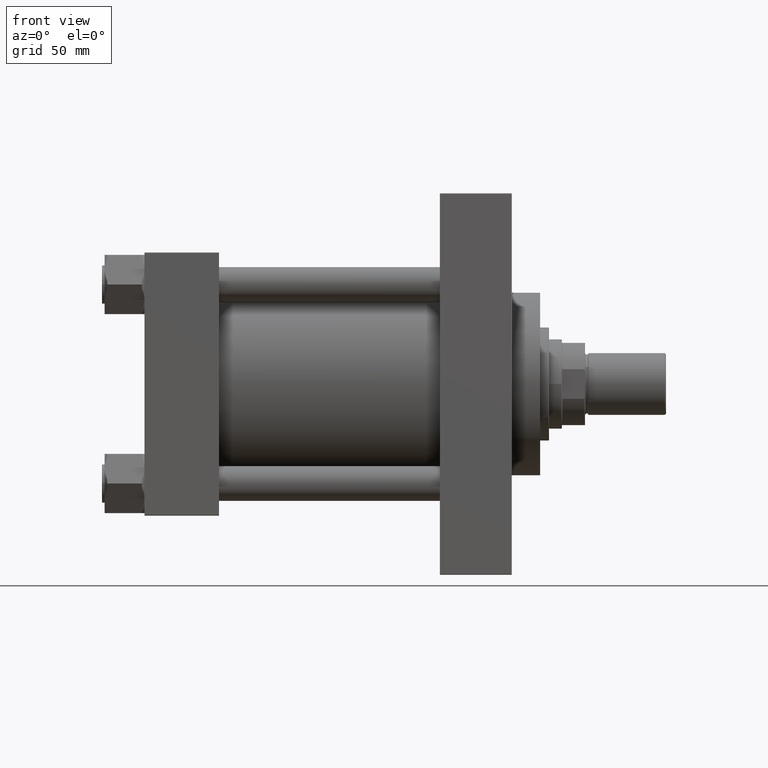
[diagram: clean part render]
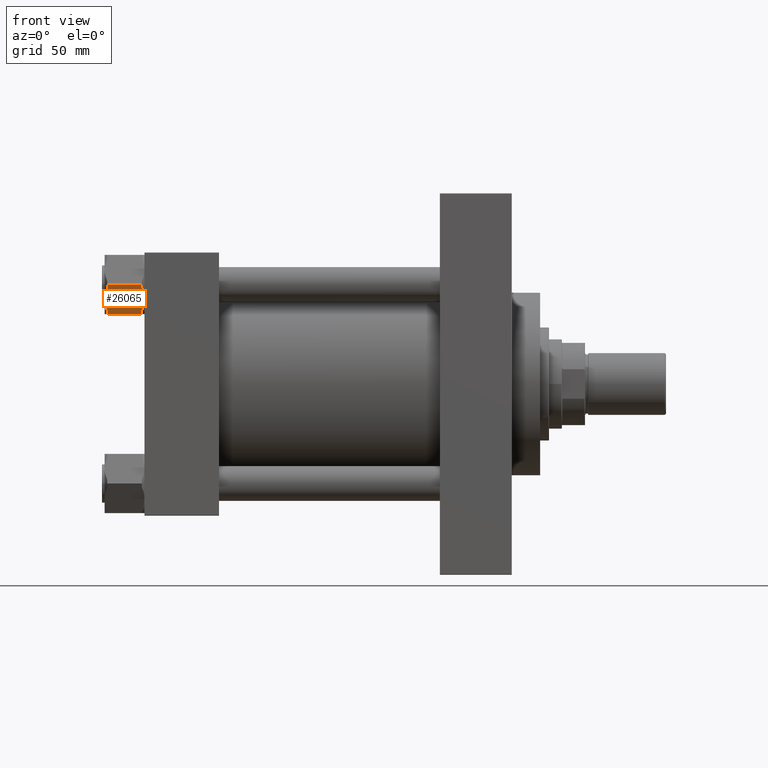
[diagram: same view with one face highlighted and labeled with its STEP entity id]
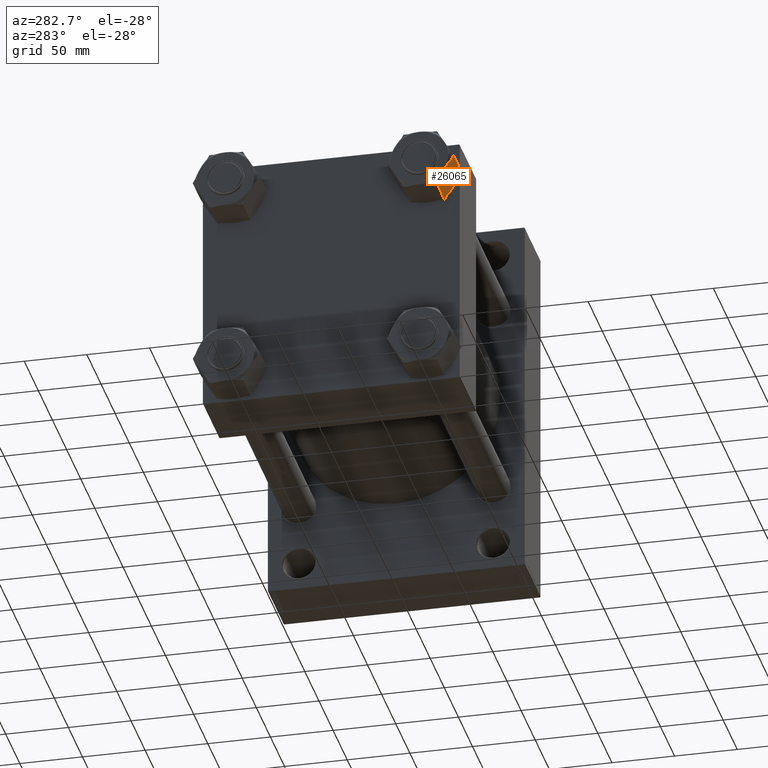
[diagram: same view with one face highlighted and labeled with its STEP entity id]
A machine part, front view. The second image highlights one B-rep face of the part: STEP entity #26065.
A second angle (auxiliary view) of the same face is appended — the face is thin or edge-on in the first view.
In plain terms, the highlighted planar face has unit normal (0, 0.866, 0.5).
Its self-contained STEP definition (entity closure, byte-faithful):
#1501 = VERTEX_POINT ( 'NONE', #16002 ) ;
#2883 = CARTESIAN_POINT ( 'NONE',  ( -26.62000000000000455, 1.322753825639812332E-14, -2.000000000000001776 ) ) ;
#3003 = VECTOR ( 'NONE', #31062, 1000.000000000000000 ) ;
#3057 = DIRECTION ( 'NONE',  ( -0.000000000000000000, -0.000000000000000000, 1.000000000000000000 ) ) ;
#3348 = VERTEX_POINT ( 'NONE', #31204 ) ;
#3508 = EDGE_CURVE ( 'NONE', #8285, #3348, #37743, .T. ) ;
#4809 = DIRECTION ( 'NONE',  ( 0.8660254037844385966, -0.5000000000000001110, 0.000000000000000000 ) ) ;
#5228 = VERTEX_POINT ( 'NONE', #22736 ) ;
#5675 = EDGE_CURVE ( 'NONE', #45898, #31908, #11365, .T. ) ;
#6294 = DIRECTION ( 'NONE',  ( -0.5000000000000001110, -0.8660254037844385966, 0.000000000000000000 ) ) ;
#6591 = CARTESIAN_POINT ( 'NONE',  ( -19.11895617587299867, 12.99218901318872810, -0.05818196640765550126 ) ) ;
#6593 = CARTESIAN_POINT ( 'NONE',  ( -19.96500000000001407, 11.52679812437088813, -31.00000000000000000 ) ) ;
#6837 = CARTESIAN_POINT ( 'NONE',  ( -20.38949137558736524, 10.79155749447877710, -30.98821302260234489 ) ) ;
#6896 = B_SPLINE_CURVE_WITH_KNOTS ( 'NONE', 3,
 ( #13751, #28569, #17636, #43458, #10092, #24923, #21287, #44419 ),
 .UNSPECIFIED., .F., .F.,
 ( 4, 2, 2, 4 ),
 ( 0.01001235240522100993, 0.01501505178013393463, 0.01751640146759039091, 0.02001775115504685065 ),
 .UNSPECIFIED. ) ;
#7451 = CARTESIAN_POINT ( 'NONE',  ( -26.62000000000000455, 1.322753825639812332E-14, -31.00000000000000000 ) ) ;
#7580 = EDGE_CURVE ( 'NONE', #31908, #5228, #27071, .T. ) ;
#8285 = VERTEX_POINT ( 'NONE', #32995 ) ;
#8978 = CARTESIAN_POINT ( 'NONE',  ( -15.06055342074746584, 20.02154878264366644, -28.99999999999999645 ) ) ;
#10092 = CARTESIAN_POINT ( 'NONE',  ( -23.27184413332395252, 5.799176072742751487, -0.9177057102691522639 ) ) ;
#10640 = CARTESIAN_POINT ( 'NONE',  ( -13.30999999999999872, 23.05359624874177271, -31.00000000000000000 ) ) ;
#10726 = CARTESIAN_POINT ( 'NONE',  ( -21.64584558940375203, 8.615488163845540726, -30.77092979404566009 ) ) ;
#11029 = ORIENTED_EDGE ( 'NONE', *, *, #41087, .F. ) ;
#11365 = LINE ( 'NONE', #38132, #35274 ) ;
#13120 = CARTESIAN_POINT ( 'NONE',  ( -13.30999999999999872, 23.05359624874177271, -28.99999999999999645 ) ) ;
#13394 = EDGE_LOOP ( 'NONE', ( #25270, #39378, #33070, #19189, #36475, #46371, #15065, #11029, #46681, #33101 ) ) ;
#13751 = CARTESIAN_POINT ( 'NONE',  ( -19.96500000000001407, 11.52679812437088813, 0.000000000000000000 ) ) ;
#14779 = DIRECTION ( 'NONE',  ( -0.000000000000000000, -0.000000000000000000, 1.000000000000000000 ) ) ;
#15065 = ORIENTED_EDGE ( 'NONE', *, *, #18111, .F. ) ;
#15603 = DIRECTION ( 'NONE',  ( -0.5000000000000001110, -0.8660254037844385966, 0.000000000000000000 ) ) ;
#15772 = DIRECTION ( 'NONE',  ( 0.5000000000000001110, 0.8660254037844385966, 0.000000000000000000 ) ) ;
#16002 = CARTESIAN_POINT ( 'NONE',  ( -26.62000000000000455, 1.322753825639812332E-14, -2.000000000000001776 ) ) ;
#17636 = CARTESIAN_POINT ( 'NONE',  ( -21.64175213325208347, 8.622578237878784080, -0.1878618656617418170 ) ) ;
#18111 = EDGE_CURVE ( 'NONE', #40885, #8285, #40115, .T. ) ;
#18117 = CARTESIAN_POINT ( 'NONE',  ( -19.96500000000001407, 11.52679812437088813, 0.000000000000000000 ) ) ;
#19189 = ORIENTED_EDGE ( 'NONE', *, *, #21431, .F. ) ;
#19251 = CARTESIAN_POINT ( 'NONE',  ( -26.62000000000000455, 1.322753825639812332E-14, -2.000000000000001776 ) ) ;
#19747 = CARTESIAN_POINT ( 'NONE',  ( -26.62000000000000455, 1.322753825639812332E-14, -28.99999999999999645 ) ) ;
#20138 = CARTESIAN_POINT ( 'NONE',  ( -26.62000000000000455, 1.322753825639812332E-14, -31.00000000000000000 ) ) ;
#21287 = CARTESIAN_POINT ( 'NONE',  ( -24.47560625466582707, 3.714198918351719225, -1.691610128380186540 ) ) ;
#21431 = EDGE_CURVE ( 'NONE', #25616, #34400, #6896, .T. ) ;
#21656 = B_SPLINE_CURVE_WITH_KNOTS ( 'NONE', 3,
 ( #45367, #42193, #35085, #31191, #34629, #27069, #38530, #30467 ),
 .UNSPECIFIED., .F., .F.,
 ( 4, 2, 2, 4 ),
 ( 0.01001235240522101687, 0.01501505178013393810, 0.01751640146759040131, 0.02001775115504686453 ),
 .UNSPECIFIED. ) ;
#21687 = CARTESIAN_POINT ( 'NONE',  ( -15.06055342074746939, 20.02154878264365934, -2.000000000000000000 ) ) ;
#22736 = CARTESIAN_POINT ( 'NONE',  ( -19.96500000000001407, 11.52679812437088813, -31.00000000000000000 ) ) ;
#23446 = EDGE_CURVE ( 'NONE', #45898, #1501, #29566, .T. ) ;
#23688 = AXIS2_PLACEMENT_3D ( 'NONE', #20138, #4809, #15772 ) ;
#24121 = VERTEX_POINT ( 'NONE', #8978 ) ;
#24923 = CARTESIAN_POINT ( 'NONE',  ( -24.07590164194817106, 4.406507615598335370, -1.410264737635125831 ) ) ;
#25270 = ORIENTED_EDGE ( 'NONE', *, *, #5675, .F. ) ;
#25501 = LINE ( 'NONE', #2883, #28836 ) ;
#25616 = VERTEX_POINT ( 'NONE', #18117 ) ;
#26038 = CARTESIAN_POINT ( 'NONE',  ( -18.28415441059626545, 14.43810808489622843, -0.2290702059543288927 ) ) ;
#26065 = ADVANCED_FACE ( 'NONE', ( #38407 ), #35201, .F. ) ;
#26682 = LINE ( 'NONE', #41571, #3003 ) ;
#26794 = VECTOR ( 'NONE', #3057, 1000.000000000000000 ) ;
#26812 = EDGE_CURVE ( 'NONE', #3348, #25616, #27447, .T. ) ;
#26925 = CARTESIAN_POINT ( 'NONE',  ( -24.86944657925254631, 3.032047466098111155, -2.000000000000000000 ) ) ;
#27069 = CARTESIAN_POINT ( 'NONE',  ( -15.85409835805183221, 18.64708863314343290, -29.58973526236486151 ) ) ;
#27071 = B_SPLINE_CURVE_WITH_KNOTS ( 'NONE', 3,
 ( #40927, #44098, #29683, #47737, #10726, #29444, #47493, #6837, #32862, #6593 ),
 .UNSPECIFIED., .F., .F.,
 ( 4, 2, 2, 2, 4 ),
 ( 5.412492187665385872E-07, 0.005006446827219896215, 0.007509399616220460878, 0.008760876010720739307, 0.01001235240522101687 ),
 .UNSPECIFIED. ) ;
#27447 = B_SPLINE_CURVE_WITH_KNOTS ( 'NONE', 3,
 ( #21687, #40195, #32377, #47735, #26038, #47986, #6591, #44333, #40924, #32860 ),
 .UNSPECIFIED., .F., .F.,
 ( 4, 2, 2, 2, 4 ),
 ( 5.412492187693073262E-07, 0.005006446827219892745, 0.007509399616220453939, 0.008760876010720730633, 0.01001235240522100993 ),
 .UNSPECIFIED. ) ;
#28569 = CARTESIAN_POINT ( 'NONE',  ( -20.81146273741195785, 10.06068165645955226, 1.890577538271597726E-14 ) ) ;
#28836 = VECTOR ( 'NONE', #6294, 1000.000000000000000 ) ;
#29444 = CARTESIAN_POINT ( 'NONE',  ( -21.02060996173663199, 9.698428037667214952, -30.90723860914735965 ) ) ;
#29566 = LINE ( 'NONE', #7451, #26794 ) ;
#29683 = CARTESIAN_POINT ( 'NONE',  ( -23.28230434144013472, 5.781058460827766865, -30.11739750492500178 ) ) ;
#30467 = CARTESIAN_POINT ( 'NONE',  ( -15.06055342074746584, 20.02154878264366644, -28.99999999999999645 ) ) ;
#31062 = DIRECTION ( 'NONE',  ( 0.5000000000000001110, 0.8660254037844385966, 0.000000000000000000 ) ) ;
#31191 = CARTESIAN_POINT ( 'NONE',  ( -17.06315302221505803, 16.55294452568461239, -30.29409426249536708 ) ) ;
#31204 = CARTESIAN_POINT ( 'NONE',  ( -15.06055342074746939, 20.02154878264365934, -2.000000000000000000 ) ) ;
#31908 = VERTEX_POINT ( 'NONE', #40548 ) ;
#32358 = EDGE_CURVE ( 'NONE', #5228, #24121, #21656, .T. ) ;
#32377 = CARTESIAN_POINT ( 'NONE',  ( -16.64769565855988276, 17.27253778791400052, -0.8826024950750006592 ) ) ;
#32860 = CARTESIAN_POINT ( 'NONE',  ( -19.96500000000001407, 11.52679812437088813, 0.000000000000000000 ) ) ;
#32862 = CARTESIAN_POINT ( 'NONE',  ( -20.17675130770548364, 11.16003410085586722, -31.00000000000002842 ) ) ;
#32863 = VECTOR ( 'NONE', #15603, 1000.000000000000000 ) ;
#32995 = CARTESIAN_POINT ( 'NONE',  ( -13.30999999999999872, 23.05359624874177271, -2.000000000000001776 ) ) ;
#33070 = ORIENTED_EDGE ( 'NONE', *, *, #48093, .F. ) ;
#33101 = ORIENTED_EDGE ( 'NONE', *, *, #7580, .F. ) ;
#34400 = VERTEX_POINT ( 'NONE', #26925 ) ;
#34629 = CARTESIAN_POINT ( 'NONE',  ( -16.65815586667606851, 17.25442017599902300, -30.08229428973084651 ) ) ;
#35085 = CARTESIAN_POINT ( 'NONE',  ( -18.28824786674792335, 14.43101801086298508, -30.81213813433825877 ) ) ;
#35201 = PLANE ( 'NONE',  #23688 ) ;
#35274 = VECTOR ( 'NONE', #45207, 1000.000000000000000 ) ;
#35950 = VECTOR ( 'NONE', #14779, 1000.000000000000000 ) ;
#36475 = ORIENTED_EDGE ( 'NONE', *, *, #26812, .F. ) ;
#37743 = LINE ( 'NONE', #19251, #32863 ) ;
#38132 = CARTESIAN_POINT ( 'NONE',  ( -26.62000000000000455, 1.322753825639812332E-14, -28.99999999999999645 ) ) ;
#38407 = FACE_OUTER_BOUND ( 'NONE', #13394, .T. ) ;
#38530 = CARTESIAN_POINT ( 'NONE',  ( -15.45439374533417975, 19.33939733039004594, -29.30838987161981279 ) ) ;
#39378 = ORIENTED_EDGE ( 'NONE', *, *, #23446, .T. ) ;
#40115 = LINE ( 'NONE', #10640, #35950 ) ;
#40195 = CARTESIAN_POINT ( 'NONE',  ( -15.84797143746255443, 18.65770077089800694, -1.383425906575934228 ) ) ;
#40548 = CARTESIAN_POINT ( 'NONE',  ( -24.86944657925254987, 3.032047466098102273, -28.99999999999999645 ) ) ;
#40885 = VERTEX_POINT ( 'NONE', #13120 ) ;
#40924 = CARTESIAN_POINT ( 'NONE',  ( -19.75324869229453739, 11.89356214788591259, 1.924835315249438913E-14 ) ) ;
#40927 = CARTESIAN_POINT ( 'NONE',  ( -24.86944657925254987, 3.032047466098102273, -28.99999999999999645 ) ) ;
#41087 = EDGE_CURVE ( 'NONE', #24121, #40885, #26682, .T. ) ;
#41571 = CARTESIAN_POINT ( 'NONE',  ( -26.62000000000000455, 1.322753825639812332E-14, -28.99999999999999645 ) ) ;
#42193 = CARTESIAN_POINT ( 'NONE',  ( -19.11853726258805253, 12.99291459228221335, -31.00000000000001776 ) ) ;
#43458 = CARTESIAN_POINT ( 'NONE',  ( -22.86684697778494524, 6.500651723057158549, -0.7059057375046260407 ) ) ;
#44098 = CARTESIAN_POINT ( 'NONE',  ( -24.08202856253745949, 4.395895477843757781, -29.61657409342407377 ) ) ;
#44333 = CARTESIAN_POINT ( 'NONE',  ( -19.54050862441265224, 12.26203875426299383, -0.01178697739765525998 ) ) ;
#44419 = CARTESIAN_POINT ( 'NONE',  ( -24.86944657925254631, 3.032047466098111155, -2.000000000000000000 ) ) ;
#45207 = DIRECTION ( 'NONE',  ( 0.5000000000000001110, 0.8660254037844385966, 0.000000000000000000 ) ) ;
#45367 = CARTESIAN_POINT ( 'NONE',  ( -19.96500000000001407, 11.52679812437088813, -31.00000000000000000 ) ) ;
#45898 = VERTEX_POINT ( 'NONE', #19747 ) ;
#46371 = ORIENTED_EDGE ( 'NONE', *, *, #3508, .F. ) ;
#46681 = ORIENTED_EDGE ( 'NONE', *, *, #32358, .F. ) ;
#47493 = CARTESIAN_POINT ( 'NONE',  ( -20.81104382412701526, 10.06140723555304106, -30.94181803359234451 ) ) ;
#47735 = CARTESIAN_POINT ( 'NONE',  ( -17.87195049697045590, 15.15206620637487589, -0.3633963927283482831 ) ) ;
#47737 = CARTESIAN_POINT ( 'NONE',  ( -22.05804950302956513, 7.901530042366891493, -30.63660360727164189 ) ) ;
#47986 = CARTESIAN_POINT ( 'NONE',  ( -18.90939003826338549, 13.35516821107455065, -0.09276139085263405970 ) ) ;
#48093 = EDGE_CURVE ( 'NONE', #34400, #1501, #25501, .T. ) ;